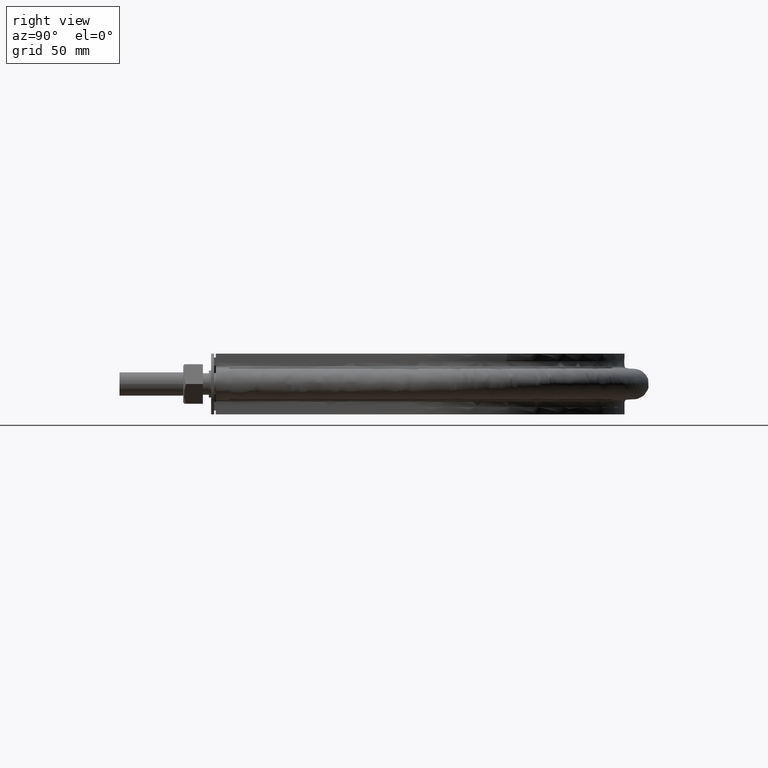
[diagram: clean part render]
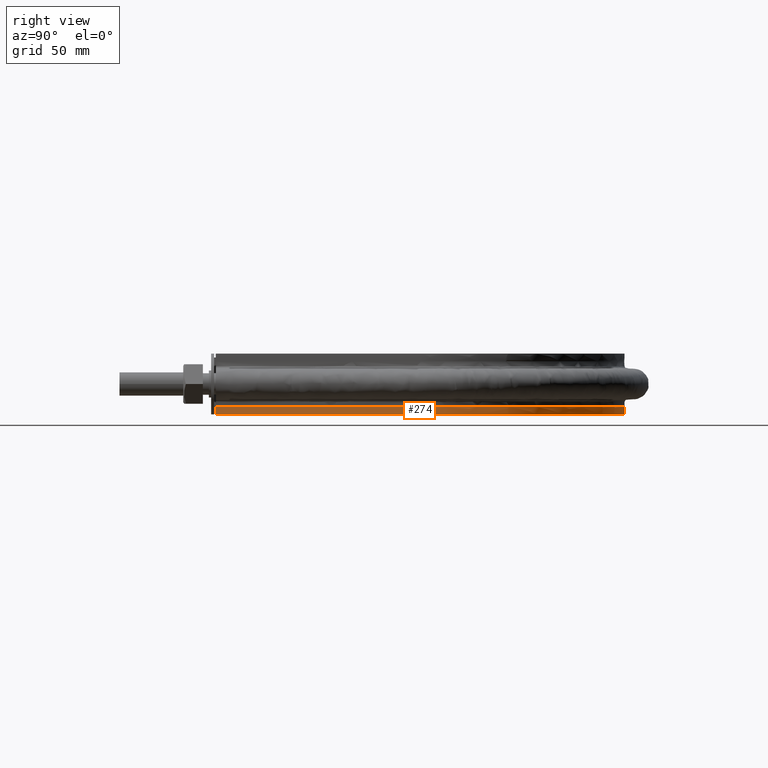
[diagram: same view with one face highlighted and labeled with its STEP entity id]
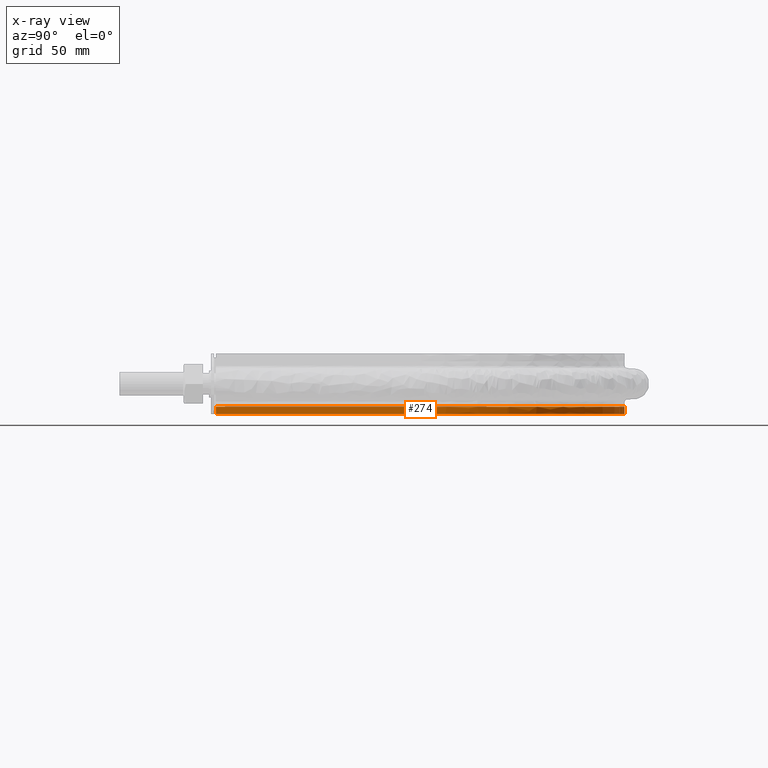
[diagram: x-ray of the same camera — body ghosted, the highlighted face saturated]
A machine part, right view. The second image highlights one B-rep face of the part: STEP entity #274.
The next image is the same camera in x-ray: the body ghosted, the highlighted face saturated — about 0% of this face is hidden behind the body in this view.
In plain terms, the highlighted face is a SurfaceOfExtrusion surface.
Its self-contained STEP definition (entity closure, byte-faithful):
#274 = ADVANCED_FACE( '', ( #378 ), #379, .T. );
#378 = FACE_OUTER_BOUND( '', #785, .T. );
#379 = SURFACE_OF_LINEAR_EXTRUSION( '', #786, #787 );
#785 = EDGE_LOOP( '', ( #1873, #1874, #1875, #1876 ) );
#786 = B_SPLINE_CURVE_WITH_KNOTS( '', 3, ( #1877, #1878, #1879, #1880, #1881, #1882, #1883, #1884, #1885, #1886, #1887, #1888, #1889, #1890, #1891, #1892, #1893, #1894, #1895, #1896, #1897, #1898, #1899, #1900, #1901, #1902, #1903, #1904, #1905, #1906, #1907, #1908, #1909, #1910, #1911, #1912, #1913, #1914, #1915, #1916, #1917, #1918, #1919, #1920, #1921, #1922, #1923, #1924, #1925, #1926, #1927, #1928, #1929, #1930, #1931, #1932, #1933, #1934, #1935, #1936, #1937, #1938, #1939, #1940, #1941, #1942, #1943, #1944, #1945, #1946, #1947, #1948, #1949, #1950, #1951, #1952, #1953, #1954, #1955, #1956, #1957, #1958, #1959, #1960, #1961, #1962, #1963, #1964, #1965, #1966, #1967, #1968, #1969 ), .UNSPECIFIED., .F., .F., ( 4, 1, 1, 2, 2, 2, 2, 2, 2, 2, 2, 2, 2, 2, 2, 2, 2, 2, 2, 2, 2, 2, 2, 2, 2, 2, 2, 2, 2, 2, 2, 2, 2, 2, 2, 2, 2, 2, 2, 2, 2, 2, 2, 2, 2, 2, 1, 4 ), ( 0.000000000000000, 0.125000000000002, 0.187500000000003, 0.191406250000003, 0.195312500000003, 0.203125000000002, 0.218750000000003, 0.250000000000003, 0.257812500000003, 0.265625000000003, 0.281250000000002, 0.312500000000002, 0.328125000000002, 0.343750000000002, 0.375000000000001, 0.390625000000001, 0.398437500000001, 0.406250000000001, 0.437500000000001, 0.453125000000001, 0.460937500000000, 0.468750000000000, 0.500000000000000, 0.515625000000000, 0.523437500000000, 0.531250000000000, 0.562500000000000, 0.578124999999999, 0.585937499999999, 0.593749999999999, 0.624999999999999, 0.656249999999999, 0.664062499999999, 0.671874999999999, 0.687499999999998, 0.718749999999998, 0.722656249999998, 0.726562499999998, 0.734374999999998, 0.749999999999998, 0.781249999999997, 0.789062499999997, 0.796874999999997, 0.804687499999997, 0.808593749999997, 0.812499999999996, 0.874999999999998, 1.00000000000000 ), .UNSPECIFIED. );
#787 = VECTOR( '', #1970, 1000.00000000000 );
#1873 = ORIENTED_EDGE( '', *, *, #2575, .T. );
#1874 = ORIENTED_EDGE( '', *, *, #2567, .T. );
#1875 = ORIENTED_EDGE( '', *, *, #2562, .F. );
#1876 = ORIENTED_EDGE( '', *, *, #2574, .F. );
#1877 = CARTESIAN_POINT( '', ( -136.950000000000, 63.5000000000001, -15.0000000000000 ) );
#1878 = CARTESIAN_POINT( '', ( -136.950000000000, 92.1083518142186, -15.0000000000000 ) );
#1879 = CARTESIAN_POINT( '', ( -136.950000000000, 135.020879535546, -15.0000000000000 ) );
#1880 = CARTESIAN_POINT( '', ( -136.950000000000, 178.827418251068, -15.0000000000000 ) );
#1881 = CARTESIAN_POINT( '', ( -136.950000000000, 194.025605152372, -15.0000000000000 ) );
#1882 = CARTESIAN_POINT( '', ( -136.950000000000, 195.813627140760, -15.0000000000000 ) );
#1883 = CARTESIAN_POINT( '', ( -136.951346114390, 196.707775042567, -15.0000000000000 ) );
#1884 = CARTESIAN_POINT( '', ( -136.920609614582, 199.386681945512, -15.0000000000000 ) );
#1885 = CARTESIAN_POINT( '', ( -136.864816667886, 201.169029468828, -15.0000000000000 ) );
#1886 = CARTESIAN_POINT( '', ( -136.593146380454, 206.505464995944, -15.0000000000000 ) );
#1887 = CARTESIAN_POINT( '', ( -136.273189661635, 210.048967525582, -15.0000000000000 ) );
#1888 = CARTESIAN_POINT( '', ( -134.901802697672, 220.637621477265, -15.0000000000000 ) );
#1889 = CARTESIAN_POINT( '', ( -133.442512350631, 227.641291170172, -15.0000000000000 ) );
#1890 = CARTESIAN_POINT( '', ( -130.901383601594, 236.322953634697, -15.0000000000000 ) );
#1891 = CARTESIAN_POINT( '', ( -130.357015832177, 238.055610275365, -15.0000000000000 ) );
#1892 = CARTESIAN_POINT( '', ( -129.193847954833, 241.513353357775, -15.0000000000000 ) );
#1893 = CARTESIAN_POINT( '', ( -128.573476846170, 243.242131151953, -15.0000000000000 ) );
#1894 = CARTESIAN_POINT( '', ( -126.618174555290, 248.362723165805, -15.0000000000000 ) );
#1895 = CARTESIAN_POINT( '', ( -125.184490197968, 251.702984774707, -15.0000000000000 ) );
#1896 = CARTESIAN_POINT( '', ( -120.505328593638, 261.510336023068, -15.0000000000000 ) );
#1897 = CARTESIAN_POINT( '', ( -116.886061102882, 267.766429658881, -15.0000000000000 ) );
#1898 = CARTESIAN_POINT( '', ( -110.711856714430, 276.729863608688, -15.0000000000000 ) );
#1899 = CARTESIAN_POINT( '', ( -108.528201325971, 279.647880339849, -15.0000000000000 ) );
#1900 = CARTESIAN_POINT( '', ( -103.904407759561, 285.334716161009, -15.0000000000000 ) );
#1901 = CARTESIAN_POINT( '', ( -101.494535344133, 288.066402872892, -15.0000000000000 ) );
#1902 = CARTESIAN_POINT( '', ( -93.9768857717446, 295.932991567950, -15.0000000000000 ) );
#1903 = CARTESIAN_POINT( '', ( -88.5810092968209, 300.739345713163, -15.0000000000000 ) );
#1904 = CARTESIAN_POINT( '', ( -79.9242816112247, 307.306932196036, -15.0000000000000 ) );
#1905 = CARTESIAN_POINT( '', ( -76.9444034133837, 309.388585548725, -15.0000000000000 ) );
#1906 = CARTESIAN_POINT( '', ( -72.3295994596727, 312.345723108325, -15.0000000000000 ) );
#1907 = CARTESIAN_POINT( '', ( -70.7649027135216, 313.304967513353, -15.0000000000000 ) );
#1908 = CARTESIAN_POINT( '', ( -67.6140063459477, 315.151291429898, -15.0000000000000 ) );
#1909 = CARTESIAN_POINT( '', ( -66.0248395654166, 316.040393152112, -15.0000000000000 ) );
#1910 = CARTESIAN_POINT( '', ( -58.0112237793678, 320.317614365294, -15.0000000000000 ) );
#1911 = CARTESIAN_POINT( '', ( -51.3838695117621, 323.201965048637, -15.0000000000000 ) );
#1912 = CARTESIAN_POINT( '', ( -41.1199306990064, 326.726783518546, -15.0000000000000 ) );
#1913 = CARTESIAN_POINT( '', ( -37.6449536795551, 327.768486983704, -15.0000000000000 ) );
#1914 = CARTESIAN_POINT( '', ( -32.3508572250080, 329.128370680882, -15.0000000000000 ) );
#1915 = CARTESIAN_POINT( '', ( -30.5711219683573, 329.548134877370, -15.0000000000000 ) );
#1916 = CARTESIAN_POINT( '', ( -26.9898806015859, 330.317593884026, -15.0000000000000 ) );
#1917 = CARTESIAN_POINT( '', ( -25.1975634552110, 330.665375332185, -15.0000000000000 ) );
#1918 = CARTESIAN_POINT( '', ( -16.2276412077899, 332.222717729931, -15.0000000000000 ) );
#1919 = CARTESIAN_POINT( '', ( -9.02523440856736, 332.892110978601, -15.0000000000000 ) );
#1920 = CARTESIAN_POINT( '', ( 1.81786937464440, 333.036051739121, -15.0000000000000 ) );
#1921 = CARTESIAN_POINT( '', ( 5.43888442947024, 332.939261125259, -15.0000000000000 ) );
#1922 = CARTESIAN_POINT( '', ( 10.8804397715058, 332.575567070277, -15.0000000000000 ) );
#1923 = CARTESIAN_POINT( '', ( 12.6959650568691, 332.417887683017, -15.0000000000000 ) );
#1924 = CARTESIAN_POINT( '', ( 16.3304010621810, 332.028795956680, -15.0000000000000 ) );
#1925 = CARTESIAN_POINT( '', ( 18.1509778757328, 331.796964222104, -15.0000000000000 ) );
#1926 = CARTESIAN_POINT( '', ( 27.1816143256275, 330.463826032725, -15.0000000000000 ) );
#1927 = CARTESIAN_POINT( '', ( 34.2390508622090, 328.839668956545, -15.0000000000000 ) );
#1928 = CARTESIAN_POINT( '', ( 44.5810778790186, 325.588595998648, -15.0000000000000 ) );
#1929 = CARTESIAN_POINT( '', ( 47.9874716560260, 324.368228980460, -15.0000000000000 ) );
#1930 = CARTESIAN_POINT( '', ( 53.0340989443394, 322.327522487613, -15.0000000000000 ) );
#1931 = CARTESIAN_POINT( '', ( 54.7057757971050, 321.612133002601, -15.0000000000000 ) );
#1932 = CARTESIAN_POINT( '', ( 58.0278931759406, 320.110472498891, -15.0000000000000 ) );
#1933 = CARTESIAN_POINT( '', ( 59.6804492387648, 319.323156348271, -15.0000000000000 ) );
#1934 = CARTESIAN_POINT( '', ( 67.8662269615211, 315.218943105620, -15.0000000000000 ) );
#1935 = CARTESIAN_POINT( '', ( 74.0672509269300, 311.457093171529, -15.0000000000000 ) );
#1936 = CARTESIAN_POINT( '', ( 85.8066697855656, 303.021264559786, -15.0000000000000 ) );
#1937 = CARTESIAN_POINT( '', ( 91.3450708111379, 298.347294323490, -15.0000000000000 ) );
#1938 = CARTESIAN_POINT( '', ( 97.8308624293475, 291.902999344751, -15.0000000000000 ) );
#1939 = CARTESIAN_POINT( '', ( 99.1063522438762, 290.583042958306, -15.0000000000000 ) );
#1940 = CARTESIAN_POINT( '', ( 101.590244963731, 287.906741637720, -15.0000000000000 ) );
#1941 = CARTESIAN_POINT( '', ( 102.801672903783, 286.547491271698, -15.0000000000000 ) );
#1942 = CARTESIAN_POINT( '', ( 106.346254323220, 282.407722078790, -15.0000000000000 ) );
#1943 = CARTESIAN_POINT( '', ( 108.589893323643, 279.565315081670, -15.0000000000000 ) );
#1944 = CARTESIAN_POINT( '', ( 114.970214089517, 270.795700236809, -15.0000000000000 ) );
#1945 = CARTESIAN_POINT( '', ( 118.759288976830, 264.628165305693, -15.0000000000000 ) );
#1946 = CARTESIAN_POINT( '', ( 122.482049801510, 257.316381079695, -15.0000000000000 ) );
#1947 = CARTESIAN_POINT( '', ( 122.888127373353, 256.498732064797, -15.0000000000000 ) );
#1948 = CARTESIAN_POINT( '', ( 123.684984798984, 254.852857558546, -15.0000000000000 ) );
#1949 = CARTESIAN_POINT( '', ( 124.076188679038, 254.023697389435, -15.0000000000000 ) );
#1950 = CARTESIAN_POINT( '', ( 125.223076035006, 251.527782870249, -15.0000000000000 ) );
#1951 = CARTESIAN_POINT( '', ( 125.951536386374, 249.853956327217, -15.0000000000000 ) );
#1952 = CARTESIAN_POINT( '', ( 128.029666807743, 244.803138776699, -15.0000000000000 ) );
#1953 = CARTESIAN_POINT( '', ( 129.272445179675, 241.396908032732, -15.0000000000000 ) );
#1954 = CARTESIAN_POINT( '', ( 132.586786070952, 231.064969568913, -15.0000000000000 ) );
#1955 = CARTESIAN_POINT( '', ( 134.247821790206, 224.026964115281, -15.0000000000000 ) );
#1956 = CARTESIAN_POINT( '', ( 135.630952375180, 215.039845429982, -15.0000000000000 ) );
#1957 = CARTESIAN_POINT( '', ( 135.872641992840, 213.232864972872, -15.0000000000000 ) );
#1958 = CARTESIAN_POINT( '', ( 136.284803757172, 209.599422844282, -15.0000000000000 ) );
#1959 = CARTESIAN_POINT( '', ( 136.455153129533, 207.772516640443, -15.0000000000000 ) );
#1960 = CARTESIAN_POINT( '', ( 136.721567786733, 204.123756924611, -15.0000000000000 ) );
#1961 = CARTESIAN_POINT( '', ( 136.818027802696, 202.298840221395, -15.0000000000000 ) );
#1962 = CARTESIAN_POINT( '', ( 136.907499245267, 199.560658472589, -15.0000000000000 ) );
#1963 = CARTESIAN_POINT( '', ( 136.928116262671, 198.647796719939, -15.0000000000000 ) );
#1964 = CARTESIAN_POINT( '', ( 136.950875956315, 196.821803321072, -15.0000000000000 ) );
#1965 = CARTESIAN_POINT( '', ( 136.950000000000, 195.908627575340, -15.0000000000000 ) );
#1966 = CARTESIAN_POINT( '', ( 136.950000000000, 180.384857445817, -15.0000000000000 ) );
#1967 = CARTESIAN_POINT( '', ( 136.950000000000, 136.553035903636, -15.0000000000000 ) );
#1968 = CARTESIAN_POINT( '', ( 136.950000000000, 92.7212143614546, -15.0000000000000 ) );
#1969 = CARTESIAN_POINT( '', ( 136.950000000000, 63.5000000000000, -15.0000000000000 ) );
#1970 = DIRECTION( '', ( -7.49830360911069E-032, -3.06151588455594E-016, -1.00000000000000 ) );
#2562 = EDGE_CURVE( '', #2753, #2755, #2756, .T. );
#2567 = EDGE_CURVE( '', #2763, #2755, #2764, .T. );
#2574 = EDGE_CURVE( '', #2772, #2753, #2774, .T. );
#2575 = EDGE_CURVE( '', #2772, #2763, #2775, .T. );
#2753 = VERTEX_POINT( '', #3205 );
#2755 = VERTEX_POINT( '', #3208 );
#2756 = B_SPLINE_CURVE_WITH_KNOTS( '', 3, ( #3209, #3210, #3211, #3212, #3213, #3214, #3215, #3216, #3217, #3218, #3219, #3220, #3221, #3222, #3223, #3224, #3225, #3226, #3227, #3228, #3229, #3230, #3231, #3232, #3233, #3234, #3235, #3236, #3237, #3238, #3239, #3240, #3241, #3242, #3243, #3244, #3245, #3246, #3247, #3248, #3249, #3250, #3251, #3252, #3253, #3254, #3255, #3256, #3257, #3258, #3259, #3260, #3261, #3262, #3263, #3264, #3265, #3266, #3267, #3268, #3269, #3270, #3271, #3272, #3273, #3274, #3275, #3276, #3277, #3278, #3279, #3280, #3281, #3282, #3283, #3284, #3285, #3286, #3287, #3288, #3289, #3290, #3291, #3292, #3293, #3294, #3295, #3296, #3297, #3298, #3299, #3300, #3301, #3302, #3303, #3304, #3305, #3306, #3307, #3308, #3309, #3310, #3311, #3312, #3313, #3314, #3315 ), .UNSPECIFIED., .F., .F., ( 4, 1, 2, 2, 2, 2, 2, 2, 2, 2, 2, 2, 2, 2, 2, 2, 2, 2, 2, 2, 2, 2, 2, 2, 2, 2, 2, 2, 2, 2, 2, 2, 2, 2, 2, 1, 2, 2, 2, 2, 2, 2, 2, 2, 2, 2, 2, 2, 2, 2, 2, 2, 2, 1, 4 ), ( 0.000000000000000, 0.0874256844655730, 0.131138526698359, 0.133870579337909, 0.136602631977458, 0.142066737256556, 0.152994947814753, 0.174851368931147, 0.180315474210245, 0.183047526849795, 0.185779579489344, 0.196707790047541, 0.218564211163936, 0.229492421722133, 0.232224474361682, 0.234956527001231, 0.240420632280330, 0.262277053396725, 0.273205263954923, 0.275937316594472, 0.278669369234021, 0.284133474513120, 0.305989895629515, 0.316918106187713, 0.322382211466811, 0.325114264106361, 0.327846316745910, 0.349702737862305, 0.360630948420502, 0.366095053699601, 0.368827106339150, 0.371559158978700, 0.393415580095095, 0.415272001211490, 0.418004053851039, 0.420736106490588, 0.426200211769687, 0.437128422327885, 0.458984843444280, 0.461716896083829, 0.464448948723379, 0.469913054002477, 0.480841264560675, 0.502697685677069, 0.508161790956168, 0.513625896235267, 0.524554106793464, 0.546410527909859, 0.551874633188958, 0.557338738468057, 0.562802843747156, 0.565534896386705, 0.568266949026255, 0.611979791259045, 0.699405475724627 ), .UNSPECIFIED. );
#2763 = VERTEX_POINT( '', #3341 );
#2764 = LINE( '', #3342, #3343 );
#2772 = VERTEX_POINT( '', #3404 );
#2774 = LINE( '', #3437, #3438 );
#2775 = B_SPLINE_CURVE_WITH_KNOTS( '', 3, ( #3439, #3440, #3441, #3442, #3443, #3444, #3445, #3446, #3447, #3448, #3449, #3450, #3451, #3452, #3453, #3454, #3455, #3456, #3457, #3458, #3459, #3460, #3461, #3462, #3463, #3464, #3465, #3466, #3467, #3468, #3469, #3470, #3471, #3472, #3473, #3474, #3475, #3476, #3477, #3478, #3479, #3480, #3481, #3482, #3483, #3484, #3485, #3486, #3487, #3488, #3489, #3490, #3491, #3492, #3493, #3494, #3495, #3496, #3497, #3498, #3499, #3500, #3501, #3502, #3503, #3504, #3505, #3506, #3507, #3508, #3509, #3510, #3511, #3512, #3513, #3514, #3515, #3516, #3517, #3518, #3519, #3520, #3521, #3522, #3523, #3524, #3525, #3526, #3527, #3528, #3529, #3530, #3531 ), .UNSPECIFIED., .F., .F., ( 4, 1, 1, 2, 2, 2, 2, 2, 2, 2, 2, 2, 2, 2, 2, 2, 2, 2, 2, 2, 2, 2, 2, 2, 2, 2, 2, 2, 2, 2, 2, 2, 2, 2, 2, 2, 2, 2, 2, 2, 2, 2, 2, 2, 2, 2, 1, 4 ), ( 0.000000000000000, 0.125000000000002, 0.187500000000003, 0.191406250000003, 0.195312500000003, 0.203125000000002, 0.218750000000003, 0.250000000000003, 0.257812500000003, 0.265625000000003, 0.281250000000002, 0.312500000000002, 0.328125000000002, 0.343750000000002, 0.375000000000001, 0.390625000000001, 0.398437500000001, 0.406250000000001, 0.437500000000001, 0.453125000000001, 0.460937500000000, 0.468750000000000, 0.500000000000000, 0.515625000000000, 0.523437500000000, 0.531250000000000, 0.562500000000000, 0.578124999999999, 0.585937499999999, 0.593749999999999, 0.624999999999999, 0.656249999999999, 0.664062499999999, 0.671874999999999, 0.687499999999998, 0.718749999999998, 0.722656249999998, 0.726562499999998, 0.734374999999998, 0.749999999999998, 0.781249999999997, 0.789062499999997, 0.796874999999997, 0.804687499999997, 0.808593749999997, 0.812499999999996, 0.874999999999998, 1.00000000000000 ), .UNSPECIFIED. );
#3205 = CARTESIAN_POINT( '', ( -136.950000000000, 63.5000000000001, -20.0000000000000 ) );
#3208 = CARTESIAN_POINT( '', ( 136.950000000000, 63.5000000000000, -20.0000000000000 ) );
#3209 = CARTESIAN_POINT( '', ( -136.950000000000, 63.5000000000001, -20.0000000000000 ) );
#3210 = CARTESIAN_POINT( '', ( -136.950000000000, 92.6419002480955, -20.0000000000000 ) );
#3211 = CARTESIAN_POINT( '', ( -136.950000000000, 136.354750620239, -20.0000000000000 ) );
#3212 = CARTESIAN_POINT( '', ( -136.950000000001, 180.067600992382, -20.0000000000000 ) );
#3213 = CARTESIAN_POINT( '', ( -136.950000000000, 195.549235499183, -20.0000000000000 ) );
#3214 = CARTESIAN_POINT( '', ( -136.952005766823, 196.459921105948, -20.0000000000000 ) );
#3215 = CARTESIAN_POINT( '', ( -136.934979206279, 198.281279481051, -20.0000000000000 ) );
#3216 = CARTESIAN_POINT( '', ( -136.916553871832, 199.191952619804, -20.0000000000000 ) );
#3217 = CARTESIAN_POINT( '', ( -136.834753701177, 201.923955849776, -20.0000000000000 ) );
#3218 = CARTESIAN_POINT( '', ( -136.743599783762, 203.741272047863, -20.0000000000000 ) );
#3219 = CARTESIAN_POINT( '', ( -136.363495553163, 209.166484778735, -20.0000000000000 ) );
#3220 = CARTESIAN_POINT( '', ( -135.967488703049, 212.753870458475, -20.0000000000000 ) );
#3221 = CARTESIAN_POINT( '', ( -134.367551969834, 223.431038801500, -20.0000000000000 ) );
#3222 = CARTESIAN_POINT( '', ( -132.750553866295, 230.435595074186, -20.0000000000000 ) );
#3223 = CARTESIAN_POINT( '', ( -130.033489035351, 239.047725779305, -20.0000000000000 ) );
#3224 = CARTESIAN_POINT( '', ( -129.454886141079, 240.762891350748, -20.0000000000000 ) );
#3225 = CARTESIAN_POINT( '', ( -128.533317502655, 243.324567410137, -20.0000000000000 ) );
#3226 = CARTESIAN_POINT( '', ( -128.217212893152, 244.176620027542, -20.0000000000000 ) );
#3227 = CARTESIAN_POINT( '', ( -127.566740219222, 245.876957051036, -20.0000000000000 ) );
#3228 = CARTESIAN_POINT( '', ( -127.232398800360, 246.725180838072, -20.0000000000000 ) );
#3229 = CARTESIAN_POINT( '', ( -125.522807242121, 250.937555990531, -20.0000000000000 ) );
#3230 = CARTESIAN_POINT( '', ( -124.027890382205, 254.231015655079, -20.0000000000000 ) );
#3231 = CARTESIAN_POINT( '', ( -119.177772488669, 263.891903517801, -20.0000000000000 ) );
#3232 = CARTESIAN_POINT( '', ( -115.456951462223, 270.039688790389, -20.0000000000000 ) );
#3233 = CARTESIAN_POINT( '', ( -109.152951019680, 278.827169774965, -20.0000000000000 ) );
#3234 = CARTESIAN_POINT( '', ( -106.930050833062, 281.683299996946, -20.0000000000000 ) );
#3235 = CARTESIAN_POINT( '', ( -103.994442146745, 285.159156375505, -20.0000000000000 ) );
#3236 = CARTESIAN_POINT( '', ( -103.399206220792, 285.849830869764, -20.0000000000000 ) );
#3237 = CARTESIAN_POINT( '', ( -102.198265091287, 287.215468669264, -20.0000000000000 ) );
#3238 = CARTESIAN_POINT( '', ( -101.591920700941, 287.891203542507, -20.0000000000000 ) );
#3239 = CARTESIAN_POINT( '', ( -99.7553846232009, 289.897299082118, -20.0000000000000 ) );
#3240 = CARTESIAN_POINT( '', ( -98.5077032633242, 291.206566629275, -20.0000000000000 ) );
#3241 = CARTESIAN_POINT( '', ( -92.1539858603117, 297.613835991357, -20.0000000000000 ) );
#3242 = CARTESIAN_POINT( '', ( -86.7024715106734, 302.295179626348, -20.0000000000000 ) );
#3243 = CARTESIAN_POINT( '', ( -77.9891669345204, 308.670721620152, -20.0000000000000 ) );
#3244 = CARTESIAN_POINT( '', ( -74.9946413234208, 310.687249879639, -20.0000000000000 ) );
#3245 = CARTESIAN_POINT( '', ( -71.1363767592860, 313.069086719323, -20.0000000000000 ) );
#3246 = CARTESIAN_POINT( '', ( -70.3589796436500, 313.538526390086, -20.0000000000000 ) );
#3247 = CARTESIAN_POINT( '', ( -68.7925101038979, 314.463324926276, -20.0000000000000 ) );
#3248 = CARTESIAN_POINT( '', ( -68.0028416365819, 314.918994503181, -20.0000000000000 ) );
#3249 = CARTESIAN_POINT( '', ( -65.6265150793059, 316.258978990764, -20.0000000000000 ) );
#3250 = CARTESIAN_POINT( '', ( -64.0295971988900, 317.118030590861, -20.0000000000000 ) );
#3251 = CARTESIAN_POINT( '', ( -55.9824089667851, 321.244365806932, -20.0000000000000 ) );
#3252 = CARTESIAN_POINT( '', ( -49.3439512001710, 324.003826159941, -20.0000000000000 ) );
#3253 = CARTESIAN_POINT( '', ( -39.0910082445164, 327.346268295584, -20.0000000000000 ) );
#3254 = CARTESIAN_POINT( '', ( -35.6241551653471, 328.327634953121, -20.0000000000000 ) );
#3255 = CARTESIAN_POINT( '', ( -30.3492784457412, 329.598384851544, -20.0000000000000 ) );
#3256 = CARTESIAN_POINT( '', ( -28.5785337099563, 329.988365122300, -20.0000000000000 ) );
#3257 = CARTESIAN_POINT( '', ( -25.9034309357789, 330.522102744633, -20.0000000000000 ) );
#3258 = CARTESIAN_POINT( '', ( -25.0077107436236, 330.691611247164, -20.0000000000000 ) );
#3259 = CARTESIAN_POINT( '', ( -23.2172138820278, 331.012112274074, -20.0000000000000 ) );
#3260 = CARTESIAN_POINT( '', ( -22.3218036874403, 331.163270419111, -20.0000000000000 ) );
#3261 = CARTESIAN_POINT( '', ( -14.2616746941869, 332.442909678166, -20.0000000000000 ) );
#3262 = CARTESIAN_POINT( '', ( -7.08688203433421, 333.005162357811, -20.0000000000000 ) );
#3263 = CARTESIAN_POINT( '', ( 3.69045053042993, 332.997356057590, -20.0000000000000 ) );
#3264 = CARTESIAN_POINT( '', ( 7.28543714267114, 332.851850186395, -20.0000000000000 ) );
#3265 = CARTESIAN_POINT( '', ( 12.6817359396556, 332.418941046076, -20.0000000000000 ) );
#3266 = CARTESIAN_POINT( '', ( 14.4811397915170, 332.238800753870, -20.0000000000000 ) );
#3267 = CARTESIAN_POINT( '', ( 17.1812121944032, 331.914258555033, -20.0000000000000 ) );
#3268 = CARTESIAN_POINT( '', ( 18.0813968219009, 331.797056870439, -20.0000000000000 ) );
#3269 = CARTESIAN_POINT( '', ( 19.8820902819273, 331.544430686412, -20.0000000000000 ) );
#3270 = CARTESIAN_POINT( '', ( 20.7835449490221, 331.408813108144, -20.0000000000000 ) );
#3271 = CARTESIAN_POINT( '', ( 28.8670965883633, 330.111328549368, -20.0000000000000 ) );
#3272 = CARTESIAN_POINT( '', ( 35.8703135520797, 328.406800400236, -20.0000000000000 ) );
#3273 = CARTESIAN_POINT( '', ( 49.5251538415372, 323.933849723651, -20.0000000000000 ) );
#3274 = CARTESIAN_POINT( '', ( 56.1748232267670, 321.159514727649, -20.0000000000000 ) );
#3275 = CARTESIAN_POINT( '', ( 63.4492399727926, 317.413652350488, -20.0000000000000 ) );
#3276 = CARTESIAN_POINT( '', ( 64.2555412528350, 316.988297906820, -20.0000000000000 ) );
#3277 = CARTESIAN_POINT( '', ( 65.8566175141480, 316.123190874325, -20.0000000000000 ) );
#3278 = CARTESIAN_POINT( '', ( 68.2414579242842, 314.803750954369, -20.0000000000000 ) );
#3279 = CARTESIAN_POINT( '', ( 70.5763589403600, 313.419469626319, -20.0000000000000 ) );
#3280 = CARTESIAN_POINT( '', ( 75.1805857318783, 310.565763947987, -20.0000000000000 ) );
#3281 = CARTESIAN_POINT( '', ( 78.1627035340668, 308.549856366461, -20.0000000000000 ) );
#3282 = CARTESIAN_POINT( '', ( 86.8543207620265, 302.171383663378, -20.0000000000000 ) );
#3283 = CARTESIAN_POINT( '', ( 92.3077229888250, 297.476301431776, -20.0000000000000 ) );
#3284 = CARTESIAN_POINT( '', ( 98.0418417248286, 291.673728261739, -20.0000000000000 ) );
#3285 = CARTESIAN_POINT( '', ( 98.6733697505170, 291.021731690675, -20.0000000000000 ) );
#3286 = CARTESIAN_POINT( '', ( 99.9251833237641, 289.703141292692, -20.0000000000000 ) );
#3287 = CARTESIAN_POINT( '', ( 100.546136743124, 289.035752086250, -20.0000000000000 ) );
#3288 = CARTESIAN_POINT( '', ( 102.386046552845, 287.018007311481, -20.0000000000000 ) );
#3289 = CARTESIAN_POINT( '', ( 103.581668710404, 285.652670943050, -20.0000000000000 ) );
#3290 = CARTESIAN_POINT( '', ( 107.077810366185, 281.497593093931, -20.0000000000000 ) );
#3291 = CARTESIAN_POINT( '', ( 109.287409665394, 278.648655660822, -20.0000000000000 ) );
#3292 = CARTESIAN_POINT( '', ( 115.563663674944, 269.872310524440, -20.0000000000000 ) );
#3293 = CARTESIAN_POINT( '', ( 119.278439319519, 263.715802833916, -20.0000000000000 ) );
#3294 = CARTESIAN_POINT( '', ( 123.322162063993, 255.629687512531, -20.0000000000000 ) );
#3295 = CARTESIAN_POINT( '', ( 124.100657851923, 253.992770208314, -20.0000000000000 ) );
#3296 = CARTESIAN_POINT( '', ( 125.595826737246, 250.678684334622, -20.0000000000000 ) );
#3297 = CARTESIAN_POINT( '', ( 126.312684101750, 249.000403133024, -20.0000000000000 ) );
#3298 = CARTESIAN_POINT( '', ( 128.350441665642, 243.950404789016, -20.0000000000000 ) );
#3299 = CARTESIAN_POINT( '', ( 129.565681668813, 240.548771227847, -20.0000000000000 ) );
#3300 = CARTESIAN_POINT( '', ( 132.799201309550, 230.243261059057, -20.0000000000000 ) );
#3301 = CARTESIAN_POINT( '', ( 134.406489655846, 223.239070076674, -20.0000000000000 ) );
#3302 = CARTESIAN_POINT( '', ( 135.730368078417, 214.316580552532, -20.0000000000000 ) );
#3303 = CARTESIAN_POINT( '', ( 135.960596827437, 212.523650463597, -20.0000000000000 ) );
#3304 = CARTESIAN_POINT( '', ( 136.350715609650, 208.920622076937, -20.0000000000000 ) );
#3305 = CARTESIAN_POINT( '', ( 136.510773884773, 207.109390090226, -20.0000000000000 ) );
#3306 = CARTESIAN_POINT( '', ( 136.758613068842, 203.474281669841, -20.0000000000000 ) );
#3307 = CARTESIAN_POINT( '', ( 136.846031799769, 201.656639207728, -20.0000000000000 ) );
#3308 = CARTESIAN_POINT( '', ( 136.922369077726, 198.930043041109, -20.0000000000000 ) );
#3309 = CARTESIAN_POINT( '', ( 136.939052762000, 198.021156467258, -20.0000000000000 ) );
#3310 = CARTESIAN_POINT( '', ( 136.951967908155, 196.203333870094, -20.0000000000000 ) );
#3311 = CARTESIAN_POINT( '', ( 136.950000000000, 195.294402200352, -20.0000000000000 ) );
#3312 = CARTESIAN_POINT( '', ( 136.950000000000, 179.842644701000, -20.0000000000000 ) );
#3313 = CARTESIAN_POINT( '', ( 136.950000000000, 136.214152938125, -20.0000000000000 ) );
#3314 = CARTESIAN_POINT( '', ( 136.950000000000, 92.5856611752497, -20.0000000000000 ) );
#3315 = CARTESIAN_POINT( '', ( 136.950000000000, 63.5000000000002, -20.0000000000000 ) );
#3341 = CARTESIAN_POINT( '', ( 136.950000000000, 63.5000000000001, -15.0000000000000 ) );
#3342 = CARTESIAN_POINT( '', ( 136.950000000000, 63.5000000000000, -15.0000000000000 ) );
#3343 = VECTOR( '', #4090, 1000.00000000000 );
#3404 = CARTESIAN_POINT( '', ( -136.950000000000, 63.5000000000001, -15.0000000000000 ) );
#3437 = CARTESIAN_POINT( '', ( -136.950000000000, 63.5000000000001, -15.0000000000000 ) );
#3438 = VECTOR( '', #4093, 1000.00000000000 );
#3439 = CARTESIAN_POINT( '', ( -136.950000000000, 63.5000000000001, -15.0000000000000 ) );
#3440 = CARTESIAN_POINT( '', ( -136.950000000000, 92.1083518142186, -15.0000000000000 ) );
#3441 = CARTESIAN_POINT( '', ( -136.950000000000, 135.020879535546, -15.0000000000000 ) );
#3442 = CARTESIAN_POINT( '', ( -136.950000000000, 178.827418251068, -15.0000000000000 ) );
#3443 = CARTESIAN_POINT( '', ( -136.950000000000, 194.025605152372, -15.0000000000000 ) );
#3444 = CARTESIAN_POINT( '', ( -136.950000000000, 195.813627140760, -15.0000000000000 ) );
#3445 = CARTESIAN_POINT( '', ( -136.951346114390, 196.707775042567, -15.0000000000000 ) );
#3446 = CARTESIAN_POINT( '', ( -136.920609614582, 199.386681945512, -15.0000000000000 ) );
#3447 = CARTESIAN_POINT( '', ( -136.864816667886, 201.169029468828, -15.0000000000000 ) );
#3448 = CARTESIAN_POINT( '', ( -136.593146380454, 206.505464995944, -15.0000000000000 ) );
#3449 = CARTESIAN_POINT( '', ( -136.273189661635, 210.048967525582, -15.0000000000000 ) );
#3450 = CARTESIAN_POINT( '', ( -134.901802697672, 220.637621477265, -15.0000000000000 ) );
#3451 = CARTESIAN_POINT( '', ( -133.442512350631, 227.641291170172, -15.0000000000000 ) );
#3452 = CARTESIAN_POINT( '', ( -130.901383601594, 236.322953634697, -15.0000000000000 ) );
#3453 = CARTESIAN_POINT( '', ( -130.357015832177, 238.055610275365, -15.0000000000000 ) );
#3454 = CARTESIAN_POINT( '', ( -129.193847954833, 241.513353357775, -15.0000000000000 ) );
#3455 = CARTESIAN_POINT( '', ( -128.573476846170, 243.242131151953, -15.0000000000000 ) );
#3456 = CARTESIAN_POINT( '', ( -126.618174555290, 248.362723165805, -15.0000000000000 ) );
#3457 = CARTESIAN_POINT( '', ( -125.184490197968, 251.702984774707, -15.0000000000000 ) );
#3458 = CARTESIAN_POINT( '', ( -120.505328593638, 261.510336023068, -15.0000000000000 ) );
#3459 = CARTESIAN_POINT( '', ( -116.886061102882, 267.766429658881, -15.0000000000000 ) );
#3460 = CARTESIAN_POINT( '', ( -110.711856714430, 276.729863608688, -15.0000000000000 ) );
#3461 = CARTESIAN_POINT( '', ( -108.528201325971, 279.647880339849, -15.0000000000000 ) );
#3462 = CARTESIAN_POINT( '', ( -103.904407759561, 285.334716161009, -15.0000000000000 ) );
#3463 = CARTESIAN_POINT( '', ( -101.494535344133, 288.066402872892, -15.0000000000000 ) );
#3464 = CARTESIAN_POINT( '', ( -93.9768857717446, 295.932991567950, -15.0000000000000 ) );
#3465 = CARTESIAN_POINT( '', ( -88.5810092968209, 300.739345713163, -15.0000000000000 ) );
#3466 = CARTESIAN_POINT( '', ( -79.9242816112247, 307.306932196036, -15.0000000000000 ) );
#3467 = CARTESIAN_POINT( '', ( -76.9444034133837, 309.388585548725, -15.0000000000000 ) );
#3468 = CARTESIAN_POINT( '', ( -72.3295994596727, 312.345723108325, -15.0000000000000 ) );
#3469 = CARTESIAN_POINT( '', ( -70.7649027135216, 313.304967513353, -15.0000000000000 ) );
#3470 = CARTESIAN_POINT( '', ( -67.6140063459477, 315.151291429898, -15.0000000000000 ) );
#3471 = CARTESIAN_POINT( '', ( -66.0248395654166, 316.040393152112, -15.0000000000000 ) );
#3472 = CARTESIAN_POINT( '', ( -58.0112237793678, 320.317614365294, -15.0000000000000 ) );
#3473 = CARTESIAN_POINT( '', ( -51.3838695117621, 323.201965048637, -15.0000000000000 ) );
#3474 = CARTESIAN_POINT( '', ( -41.1199306990064, 326.726783518546, -15.0000000000000 ) );
#3475 = CARTESIAN_POINT( '', ( -37.6449536795551, 327.768486983704, -15.0000000000000 ) );
#3476 = CARTESIAN_POINT( '', ( -32.3508572250080, 329.128370680882, -15.0000000000000 ) );
#3477 = CARTESIAN_POINT( '', ( -30.5711219683573, 329.548134877370, -15.0000000000000 ) );
#3478 = CARTESIAN_POINT( '', ( -26.9898806015859, 330.317593884026, -15.0000000000000 ) );
#3479 = CARTESIAN_POINT( '', ( -25.1975634552110, 330.665375332185, -15.0000000000000 ) );
#3480 = CARTESIAN_POINT( '', ( -16.2276412077899, 332.222717729931, -15.0000000000000 ) );
#3481 = CARTESIAN_POINT( '', ( -9.02523440856736, 332.892110978601, -15.0000000000000 ) );
#3482 = CARTESIAN_POINT( '', ( 1.81786937464440, 333.036051739121, -15.0000000000000 ) );
#3483 = CARTESIAN_POINT( '', ( 5.43888442947024, 332.939261125259, -15.0000000000000 ) );
#3484 = CARTESIAN_POINT( '', ( 10.8804397715058, 332.575567070277, -15.0000000000000 ) );
#3485 = CARTESIAN_POINT( '', ( 12.6959650568691, 332.417887683017, -15.0000000000000 ) );
#3486 = CARTESIAN_POINT( '', ( 16.3304010621810, 332.028795956680, -15.0000000000000 ) );
#3487 = CARTESIAN_POINT( '', ( 18.1509778757328, 331.796964222104, -15.0000000000000 ) );
#3488 = CARTESIAN_POINT( '', ( 27.1816143256275, 330.463826032725, -15.0000000000000 ) );
#3489 = CARTESIAN_POINT( '', ( 34.2390508622090, 328.839668956545, -15.0000000000000 ) );
#3490 = CARTESIAN_POINT( '', ( 44.5810778790186, 325.588595998648, -15.0000000000000 ) );
#3491 = CARTESIAN_POINT( '', ( 47.9874716560260, 324.368228980460, -15.0000000000000 ) );
#3492 = CARTESIAN_POINT( '', ( 53.0340989443394, 322.327522487613, -15.0000000000000 ) );
#3493 = CARTESIAN_POINT( '', ( 54.7057757971050, 321.612133002601, -15.0000000000000 ) );
#3494 = CARTESIAN_POINT( '', ( 58.0278931759406, 320.110472498891, -15.0000000000000 ) );
#3495 = CARTESIAN_POINT( '', ( 59.6804492387648, 319.323156348271, -15.0000000000000 ) );
#3496 = CARTESIAN_POINT( '', ( 67.8662269615211, 315.218943105620, -15.0000000000000 ) );
#3497 = CARTESIAN_POINT( '', ( 74.0672509269300, 311.457093171529, -15.0000000000000 ) );
#3498 = CARTESIAN_POINT( '', ( 85.8066697855656, 303.021264559786, -15.0000000000000 ) );
#3499 = CARTESIAN_POINT( '', ( 91.3450708111379, 298.347294323490, -15.0000000000000 ) );
#3500 = CARTESIAN_POINT( '', ( 97.8308624293475, 291.902999344751, -15.0000000000000 ) );
#3501 = CARTESIAN_POINT( '', ( 99.1063522438762, 290.583042958306, -15.0000000000000 ) );
#3502 = CARTESIAN_POINT( '', ( 101.590244963731, 287.906741637720, -15.0000000000000 ) );
#3503 = CARTESIAN_POINT( '', ( 102.801672903783, 286.547491271698, -15.0000000000000 ) );
#3504 = CARTESIAN_POINT( '', ( 106.346254323220, 282.407722078790, -15.0000000000000 ) );
#3505 = CARTESIAN_POINT( '', ( 108.589893323643, 279.565315081670, -15.0000000000000 ) );
#3506 = CARTESIAN_POINT( '', ( 114.970214089517, 270.795700236809, -15.0000000000000 ) );
#3507 = CARTESIAN_POINT( '', ( 118.759288976830, 264.628165305693, -15.0000000000000 ) );
#3508 = CARTESIAN_POINT( '', ( 122.482049801510, 257.316381079695, -15.0000000000000 ) );
#3509 = CARTESIAN_POINT( '', ( 122.888127373353, 256.498732064797, -15.0000000000000 ) );
#3510 = CARTESIAN_POINT( '', ( 123.684984798984, 254.852857558546, -15.0000000000000 ) );
#3511 = CARTESIAN_POINT( '', ( 124.076188679038, 254.023697389435, -15.0000000000000 ) );
#3512 = CARTESIAN_POINT( '', ( 125.223076035006, 251.527782870249, -15.0000000000000 ) );
#3513 = CARTESIAN_POINT( '', ( 125.951536386374, 249.853956327217, -15.0000000000000 ) );
#3514 = CARTESIAN_POINT( '', ( 128.029666807743, 244.803138776699, -15.0000000000000 ) );
#3515 = CARTESIAN_POINT( '', ( 129.272445179675, 241.396908032732, -15.0000000000000 ) );
#3516 = CARTESIAN_POINT( '', ( 132.586786070952, 231.064969568913, -15.0000000000000 ) );
#3517 = CARTESIAN_POINT( '', ( 134.247821790206, 224.026964115281, -15.0000000000000 ) );
#3518 = CARTESIAN_POINT( '', ( 135.630952375180, 215.039845429982, -15.0000000000000 ) );
#3519 = CARTESIAN_POINT( '', ( 135.872641992840, 213.232864972872, -15.0000000000000 ) );
#3520 = CARTESIAN_POINT( '', ( 136.284803757172, 209.599422844282, -15.0000000000000 ) );
#3521 = CARTESIAN_POINT( '', ( 136.455153129533, 207.772516640443, -15.0000000000000 ) );
#3522 = CARTESIAN_POINT( '', ( 136.721567786733, 204.123756924611, -15.0000000000000 ) );
#3523 = CARTESIAN_POINT( '', ( 136.818027802696, 202.298840221395, -15.0000000000000 ) );
#3524 = CARTESIAN_POINT( '', ( 136.907499245267, 199.560658472589, -15.0000000000000 ) );
#3525 = CARTESIAN_POINT( '', ( 136.928116262671, 198.647796719939, -15.0000000000000 ) );
#3526 = CARTESIAN_POINT( '', ( 136.950875956315, 196.821803321072, -15.0000000000000 ) );
#3527 = CARTESIAN_POINT( '', ( 136.950000000000, 195.908627575340, -15.0000000000000 ) );
#3528 = CARTESIAN_POINT( '', ( 136.950000000000, 180.384857445817, -15.0000000000000 ) );
#3529 = CARTESIAN_POINT( '', ( 136.950000000000, 136.553035903636, -15.0000000000000 ) );
#3530 = CARTESIAN_POINT( '', ( 136.950000000000, 92.7212143614546, -15.0000000000000 ) );
#3531 = CARTESIAN_POINT( '', ( 136.950000000000, 63.5000000000000, -15.0000000000000 ) );
#4090 = DIRECTION( '', ( -7.49830360911069E-032, -3.06151588455594E-016, -1.00000000000000 ) );
#4093 = DIRECTION( '', ( -7.49830360911069E-032, -3.06151588455594E-016, -1.00000000000000 ) );